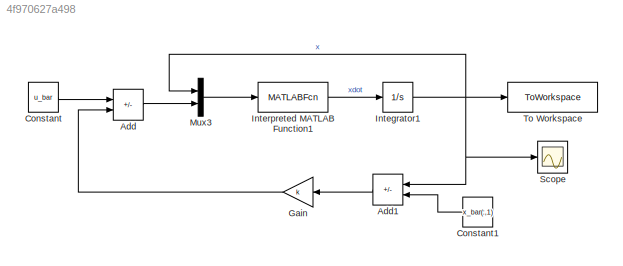
MODEL slx_4f970627a498
KIND model
CONFIG AbsTol = auto
CONFIG EnableMultiTasking = on
CONFIG FixedStep = auto
CONFIG MaxStep = auto
CONFIG MinStep = auto
CONFIG RelTol = 1e-3
CONFIG SampleTimeConstraint = Unconstrained
CONFIG SolverName = ode45
CONFIG StartTime = 0.0
CONFIG StopTime = Tfin
BLOCK [Sum] Add
  IconShape = rectangular
  Inputs = +-
BLOCK [Sum] Add1
  IconShape = rectangular
  Inputs = +-
  NameLocation = top
BLOCK [Constant] Constant
  SampleTime = 0.1
  Value = u_bar
BLOCK [Constant] Constant1
  SampleTime = 0.1
  Value = x_bar(:,1)
BLOCK [Gain] Gain
  Gain = k
  Multiplication = Matrix(K*u)
BLOCK [Integrator] Integrator1
  InitialCondition = x0
BLOCK [MATLABFcn] Interpreted MATLAB Function1
  MATLABFcn = chua_circuit(u(1:3),u(4))
BLOCK [Mux] Mux3
  DisplayOption = bar
  Inputs = 2
BLOCK [Scope] Scope
  Floating = off
  NumInputPorts = 1
  ScopeSpecificationString = Simulink.scopes.TimeScopeBlockCfg('CurrentConfiguration', extmgr.ConfigurationSet(extmgr.Configuration('Core','General UI',true),extmgr.Configuration('Core','Source UI',true),extmgr.Configuration('Sources','WiredSimulink',true),extmgr.Configuration('Visuals','Time Domain',true,'SerializedDisplays',{struct('MinYLimReal','-0.16254','MaxYLimReal','0.8319','YLabelReal','','MinYLimMag','0.00000','MaxYL...<+1357ch>
BLOCK [ToWorkspace] To Workspace
  FixptAsFi = on
  MaxDataPoints = inf
  SampleTime = 0.1
  Save2DSignal = 2-D array (concatenate along first dimension)
  VariableName = x
LINE Add1:1 -> Gain:1
LINE Add:1 -> Mux3:2
LINE Constant1:1 -> Add1:2
LINE Constant:1 -> Add:1
LINE Gain:1 -> Add:2
NET Integrator1:1 -> Add1:1, Mux3:1, Scope:1, To Workspace:1
LINE Interpreted MATLAB Function1:1 -> Integrator1:1
LINE Mux3:1 -> Interpreted MATLAB Function1:1
note: NET lines group one-source signal fan-out (src -> all destinations, sorted); 1:1 wires keep LINE
